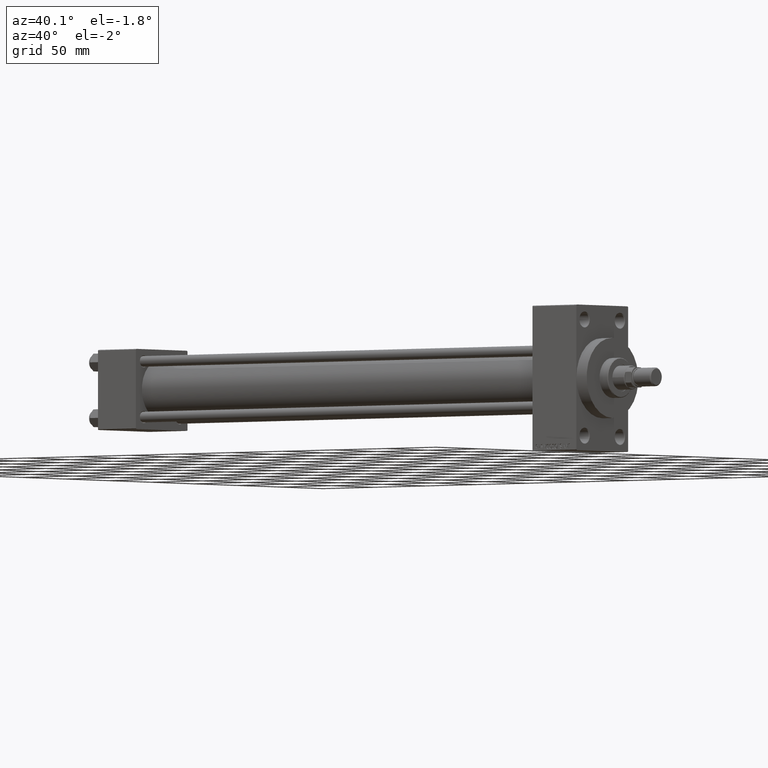
[diagram: clean part render]
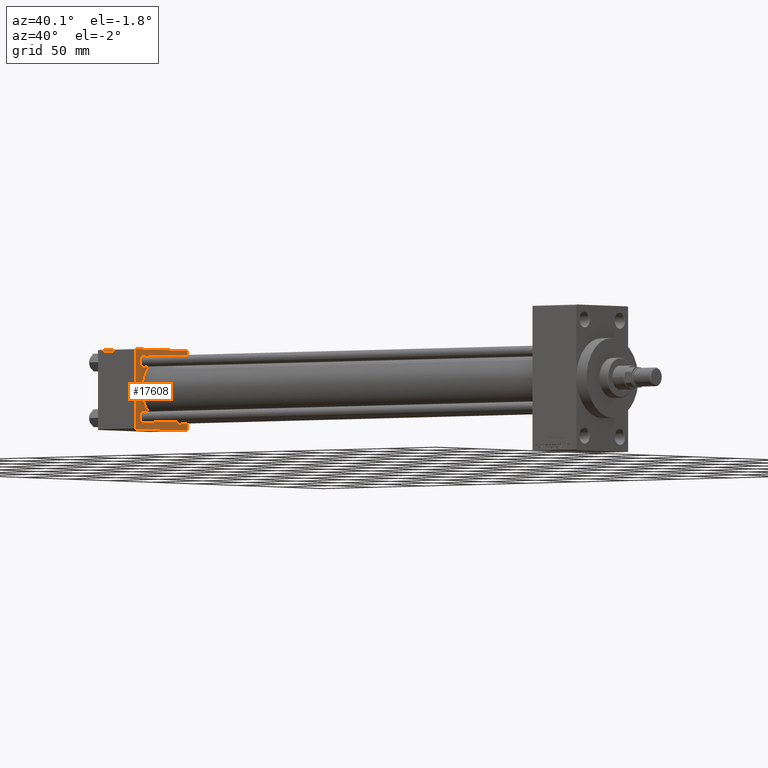
[diagram: same view with one face highlighted and labeled with its STEP entity id]
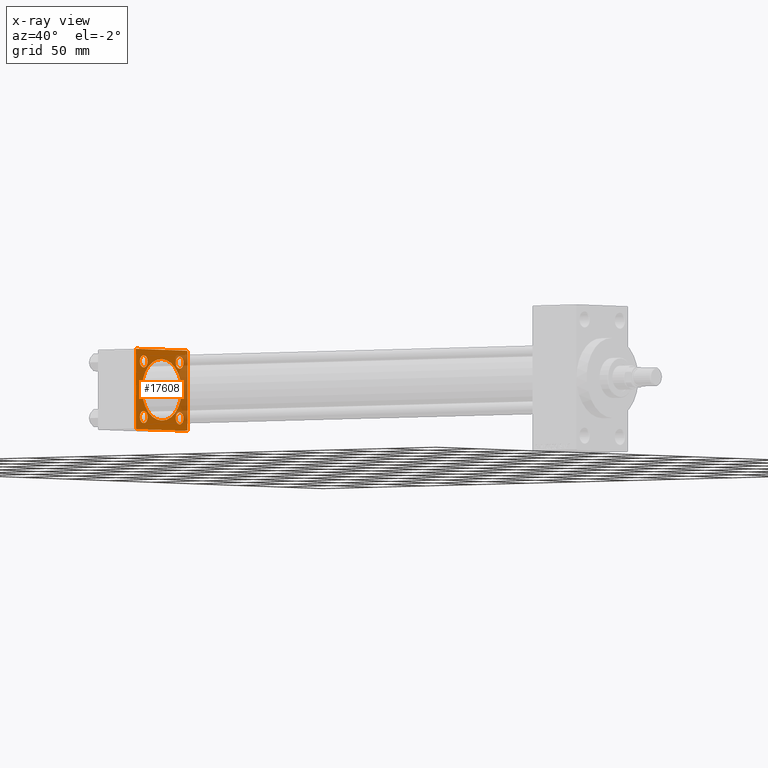
[diagram: x-ray of the same camera — body ghosted, the highlighted face saturated]
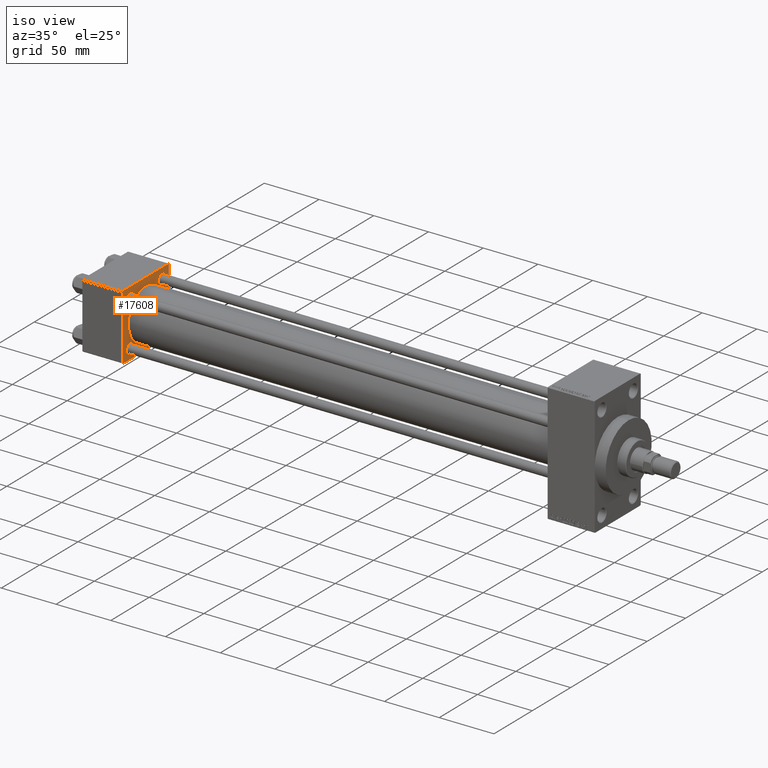
[diagram: same view with one face highlighted and labeled with its STEP entity id]
A machine part, auxiliary view. The second image highlights one B-rep face of the part: STEP entity #17608.
The next image is the same camera in x-ray: the body ghosted, the highlighted face saturated — about 23% of this face is hidden behind the body in this view.
A second angle (iso view) of the same face is appended — the face is thin or edge-on in the first view.
In plain terms, the highlighted planar face has unit normal (-1, 0, 0).
Its self-contained STEP definition (entity closure, byte-faithful):
#945 = CARTESIAN_POINT ( 'NONE',  ( 37.00000000000000000, -30.00000000000000000, 29.49999999999999289 ) ) ;
#1373 = DIRECTION ( 'NONE',  ( 0.000000000000000000, -0.7071067811865474617, 0.7071067811865474617 ) ) ;
#1448 = CARTESIAN_POINT ( 'NONE',  ( 37.00000000000000000, -30.00000000000000000, 29.99999999999999289 ) ) ;
#1818 = ORIENTED_EDGE ( 'NONE', *, *, #25349, .T. ) ;
#2108 = CARTESIAN_POINT ( 'NONE',  ( 37.00000000000000000, 29.49999999999999289, 30.00000000000000000 ) ) ;
#2352 = DIRECTION ( 'NONE',  ( -1.000000000000000000, 0.000000000000000000, -0.000000000000000000 ) ) ;
#2415 = VERTEX_POINT ( 'NONE', #24880 ) ;
#2468 = DIRECTION ( 'NONE',  ( 0.000000000000000000, 0.000000000000000000, 1.000000000000000000 ) ) ;
#2519 = EDGE_CURVE ( 'NONE', #20701, #42573, #45142, .T. ) ;
#2646 = DIRECTION ( 'NONE',  ( 0.000000000000000000, 0.000000000000000000, 1.000000000000000000 ) ) ;
#2683 = EDGE_CURVE ( 'NONE', #37690, #46907, #5759, .T. ) ;
#3817 = EDGE_CURVE ( 'NONE', #28309, #5826, #4278, .T. ) ;
#4092 = LINE ( 'NONE', #945, #6767 ) ;
#4278 = CIRCLE ( 'NONE', #39700, 23.00000000000000000 ) ;
#4282 = EDGE_LOOP ( 'NONE', ( #24780, #44676, #40779, #47598, #11938, #19062, #46255, #9643 ) ) ;
#4845 = DIRECTION ( 'NONE',  ( -0.000000000000000000, 0.7071067811865574537, 0.7071067811865376918 ) ) ;
#5004 = VECTOR ( 'NONE', #4845, 999.9999999999998863 ) ;
#5317 = LINE ( 'NONE', #1448, #29743 ) ;
#5522 = EDGE_CURVE ( 'NONE', #16800, #13347, #17408, .T. ) ;
#5543 = CIRCLE ( 'NONE', #14753, 4.499999999999948486 ) ;
#5561 = EDGE_CURVE ( 'NONE', #11987, #8473, #16094, .T. ) ;
#5596 = FACE_BOUND ( 'NONE', #41267, .T. ) ;
#5622 = CARTESIAN_POINT ( 'NONE',  ( 36.99999999999997868, -2.602085213965210642E-15, 0.000000000000000000 ) ) ;
#5759 = CIRCLE ( 'NONE', #8108, 4.499999999999948486 ) ;
#5826 = VERTEX_POINT ( 'NONE', #29337 ) ;
#6155 = CARTESIAN_POINT ( 'NONE',  ( 37.00000000000000000, 20.84999999999999787, 16.35000000000005116 ) ) ;
#6308 = DIRECTION ( 'NONE',  ( -1.000000000000000000, 0.000000000000000000, -0.000000000000000000 ) ) ;
#6371 = VERTEX_POINT ( 'NONE', #17115 ) ;
#6490 = CARTESIAN_POINT ( 'NONE',  ( 37.00000000000000000, -29.50000000000000000, -30.00000000000000711 ) ) ;
#6752 = CARTESIAN_POINT ( 'NONE',  ( 37.00000000000000000, -20.84999999999999076, 20.85000000000000497 ) ) ;
#6767 = VECTOR ( 'NONE', #8436, 1000.000000000000114 ) ;
#7310 = DIRECTION ( 'NONE',  ( 0.000000000000000000, -1.000000000000000000, -1.156482317317871725E-16 ) ) ;
#7524 = CARTESIAN_POINT ( 'NONE',  ( 37.00000000000000000, 29.99999999999999289, -30.00000000000000000 ) ) ;
#7577 = VERTEX_POINT ( 'NONE', #40055 ) ;
#7977 = CARTESIAN_POINT ( 'NONE',  ( 37.00000000000000000, 20.84999999999999787, -20.85000000000000142 ) ) ;
#8108 = AXIS2_PLACEMENT_3D ( 'NONE', #6752, #11073, #2646 ) ;
#8436 = DIRECTION ( 'NONE',  ( -0.000000000000000000, -0.7071067811865474617, -0.7071067811865474617 ) ) ;
#8473 = VERTEX_POINT ( 'NONE', #6490 ) ;
#8559 = EDGE_LOOP ( 'NONE', ( #36879, #29476 ) ) ;
#9251 = ORIENTED_EDGE ( 'NONE', *, *, #40187, .T. ) ;
#9643 = ORIENTED_EDGE ( 'NONE', *, *, #5561, .T. ) ;
#9929 = CARTESIAN_POINT ( 'NONE',  ( 37.00000000000000000, 20.84999999999999787, -25.34999999999994813 ) ) ;
#10041 = AXIS2_PLACEMENT_3D ( 'NONE', #20937, #28201, #30862 ) ;
#10071 = VECTOR ( 'NONE', #44813, 1000.000000000000000 ) ;
#10264 = EDGE_CURVE ( 'NONE', #29431, #12718, #40103, .T. ) ;
#10686 = CARTESIAN_POINT ( 'NONE',  ( 37.00000000000000000, 29.99999999999999289, 30.00000000000000000 ) ) ;
#11035 = EDGE_LOOP ( 'NONE', ( #11271, #26745 ) ) ;
#11073 = DIRECTION ( 'NONE',  ( -1.000000000000000000, 0.000000000000000000, -0.000000000000000000 ) ) ;
#11271 = ORIENTED_EDGE ( 'NONE', *, *, #33829, .T. ) ;
#11928 = CIRCLE ( 'NONE', #28107, 4.499999999999948486 ) ;
#11938 = ORIENTED_EDGE ( 'NONE', *, *, #10264, .T. ) ;
#11976 = EDGE_CURVE ( 'NONE', #6371, #27371, #43959, .T. ) ;
#11987 = VERTEX_POINT ( 'NONE', #12518 ) ;
#12081 = CARTESIAN_POINT ( 'NONE',  ( 37.00000000000000000, 29.99999999999999289, -29.50000000000000000 ) ) ;
#12105 = EDGE_LOOP ( 'NONE', ( #9251, #33475 ) ) ;
#12151 = EDGE_CURVE ( 'NONE', #20258, #42573, #30572, .T. ) ;
#12518 = CARTESIAN_POINT ( 'NONE',  ( 37.00000000000000000, -30.00000000000000000, -29.50000000000001776 ) ) ;
#12718 = VERTEX_POINT ( 'NONE', #24778 ) ;
#13171 = AXIS2_PLACEMENT_3D ( 'NONE', #36440, #46830, #28266 ) ;
#13202 = DIRECTION ( 'NONE',  ( 0.000000000000000000, 0.000000000000000000, 1.000000000000000000 ) ) ;
#13347 = VERTEX_POINT ( 'NONE', #39714 ) ;
#13429 = DIRECTION ( 'NONE',  ( 0.000000000000000000, 0.000000000000000000, 1.000000000000000000 ) ) ;
#14498 = VERTEX_POINT ( 'NONE', #6155 ) ;
#14753 = AXIS2_PLACEMENT_3D ( 'NONE', #39719, #39954, #13429 ) ;
#14868 = AXIS2_PLACEMENT_3D ( 'NONE', #36211, #6308, #28741 ) ;
#14974 = LINE ( 'NONE', #7524, #29074 ) ;
#16094 = LINE ( 'NONE', #16573, #25891 ) ;
#16146 = DIRECTION ( 'NONE',  ( 0.000000000000000000, 0.000000000000000000, -1.000000000000000000 ) ) ;
#16573 = CARTESIAN_POINT ( 'NONE',  ( 37.00000000000000000, -29.50000000000001066, -30.00000000000000711 ) ) ;
#16800 = VERTEX_POINT ( 'NONE', #9929 ) ;
#16851 = CARTESIAN_POINT ( 'NONE',  ( 37.00000000000000000, -20.84999999999999076, 25.34999999999995168 ) ) ;
#17115 = CARTESIAN_POINT ( 'NONE',  ( 37.00000000000000000, -20.84999999999999076, -16.35000000000005471 ) ) ;
#17408 = CIRCLE ( 'NONE', #37475, 4.499999999999948486 ) ;
#17608 = ADVANCED_FACE ( 'NONE', ( #20542, #5596, #31407, #46116, #28024, #24151 ), #38887, .F. ) ;
#18231 = EDGE_CURVE ( 'NONE', #7577, #14498, #27254, .T. ) ;
#18543 = CIRCLE ( 'NONE', #13171, 4.499999999999948486 ) ;
#19062 = ORIENTED_EDGE ( 'NONE', *, *, #35626, .T. ) ;
#19135 = AXIS2_PLACEMENT_3D ( 'NONE', #34784, #42024, #38400 ) ;
#19724 = DIRECTION ( 'NONE',  ( 0.000000000000000000, 0.000000000000000000, 1.000000000000000000 ) ) ;
#20258 = VERTEX_POINT ( 'NONE', #31808 ) ;
#20542 = FACE_BOUND ( 'NONE', #12105, .T. ) ;
#20686 = VECTOR ( 'NONE', #1373, 1000.000000000000114 ) ;
#20701 = VERTEX_POINT ( 'NONE', #21592 ) ;
#20792 = EDGE_LOOP ( 'NONE', ( #36851, #44309 ) ) ;
#20937 = CARTESIAN_POINT ( 'NONE',  ( 37.00000000000000000, -20.84999999999999076, -20.85000000000000497 ) ) ;
#21592 = CARTESIAN_POINT ( 'NONE',  ( 37.00000000000000000, 29.49999999999997868, -30.00000000000000000 ) ) ;
#23323 = CARTESIAN_POINT ( 'NONE',  ( 37.00000000000000000, 29.49999999999999289, 30.00000000000000000 ) ) ;
#23587 = CARTESIAN_POINT ( 'NONE',  ( 37.00000000000000000, 20.84999999999999787, -20.85000000000000142 ) ) ;
#24098 = CARTESIAN_POINT ( 'NONE',  ( 37.00000000000000000, -20.84999999999999076, -25.34999999999995168 ) ) ;
#24139 = AXIS2_PLACEMENT_3D ( 'NONE', #35409, #2352, #24775 ) ;
#24151 = FACE_OUTER_BOUND ( 'NONE', #4282, .T. ) ;
#24534 = CARTESIAN_POINT ( 'NONE',  ( 36.99999999999997868, -2.602085213965210642E-15, 0.000000000000000000 ) ) ;
#24775 = DIRECTION ( 'NONE',  ( 0.000000000000000000, 0.000000000000000000, 1.000000000000000000 ) ) ;
#24778 = CARTESIAN_POINT ( 'NONE',  ( 37.00000000000000000, -29.49999999999998579, 29.99999999999999289 ) ) ;
#24780 = ORIENTED_EDGE ( 'NONE', *, *, #30988, .F. ) ;
#24880 = CARTESIAN_POINT ( 'NONE',  ( 37.00000000000000000, -30.00000000000000000, 29.49999999999999289 ) ) ;
#25349 = EDGE_CURVE ( 'NONE', #13347, #16800, #11928, .T. ) ;
#25450 = CARTESIAN_POINT ( 'NONE',  ( 37.00000000000000000, 29.99999999999999289, -29.50000000000000000 ) ) ;
#25891 = VECTOR ( 'NONE', #31305, 1000.000000000000114 ) ;
#26745 = ORIENTED_EDGE ( 'NONE', *, *, #18231, .T. ) ;
#27254 = CIRCLE ( 'NONE', #24139, 4.499999999999948486 ) ;
#27343 = EDGE_CURVE ( 'NONE', #2415, #11987, #5317, .T. ) ;
#27371 = VERTEX_POINT ( 'NONE', #24098 ) ;
#28024 = FACE_BOUND ( 'NONE', #8559, .T. ) ;
#28107 = AXIS2_PLACEMENT_3D ( 'NONE', #7977, #44872, #41717 ) ;
#28201 = DIRECTION ( 'NONE',  ( -1.000000000000000000, 0.000000000000000000, -0.000000000000000000 ) ) ;
#28266 = DIRECTION ( 'NONE',  ( 0.000000000000000000, 0.000000000000000000, 1.000000000000000000 ) ) ;
#28309 = VERTEX_POINT ( 'NONE', #30428 ) ;
#28741 = DIRECTION ( 'NONE',  ( -0.000000000000000000, 0.000000000000000000, 1.000000000000000000 ) ) ;
#29074 = VECTOR ( 'NONE', #41030, 1000.000000000000000 ) ;
#29337 = CARTESIAN_POINT ( 'NONE',  ( 36.99999999999997868, -2.602085213965210642E-15, 23.00000000000000000 ) ) ;
#29431 = VERTEX_POINT ( 'NONE', #2108 ) ;
#29476 = ORIENTED_EDGE ( 'NONE', *, *, #3817, .F. ) ;
#29743 = VECTOR ( 'NONE', #16146, 1000.000000000000000 ) ;
#30101 = CARTESIAN_POINT ( 'NONE',  ( 37.00000000000000000, 29.99999999999999289, 30.00000000000000000 ) ) ;
#30428 = CARTESIAN_POINT ( 'NONE',  ( 36.99999999999997868, 2.146024240737012665E-16, -23.00000000000000000 ) ) ;
#30572 = LINE ( 'NONE', #30101, #10071 ) ;
#30862 = DIRECTION ( 'NONE',  ( 0.000000000000000000, 0.000000000000000000, 1.000000000000000000 ) ) ;
#30988 = EDGE_CURVE ( 'NONE', #20701, #8473, #14974, .T. ) ;
#31305 = DIRECTION ( 'NONE',  ( 0.000000000000000000, 0.7071067811865474617, -0.7071067811865474617 ) ) ;
#31407 = FACE_BOUND ( 'NONE', #20792, .T. ) ;
#31808 = CARTESIAN_POINT ( 'NONE',  ( 37.00000000000000000, 29.99999999999999289, 29.50000000000000000 ) ) ;
#33475 = ORIENTED_EDGE ( 'NONE', *, *, #11976, .T. ) ;
#33829 = EDGE_CURVE ( 'NONE', #14498, #7577, #43021, .T. ) ;
#34226 = DIRECTION ( 'NONE',  ( -1.000000000000000000, 0.000000000000000000, -0.000000000000000000 ) ) ;
#34341 = EDGE_CURVE ( 'NONE', #20258, #29431, #36375, .T. ) ;
#34784 = CARTESIAN_POINT ( 'NONE',  ( 37.00000000000000000, 20.84999999999999787, 20.85000000000000142 ) ) ;
#34813 = DIRECTION ( 'NONE',  ( 1.000000000000000000, -0.000000000000000000, 0.000000000000000000 ) ) ;
#35409 = CARTESIAN_POINT ( 'NONE',  ( 37.00000000000000000, 20.84999999999999787, 20.85000000000000142 ) ) ;
#35626 = EDGE_CURVE ( 'NONE', #12718, #2415, #4092, .T. ) ;
#36211 = CARTESIAN_POINT ( 'NONE',  ( 37.00000000000000000, 0.000000000000000000, 0.000000000000000000 ) ) ;
#36375 = LINE ( 'NONE', #23323, #20686 ) ;
#36440 = CARTESIAN_POINT ( 'NONE',  ( 37.00000000000000000, -20.84999999999999076, 20.85000000000000497 ) ) ;
#36851 = ORIENTED_EDGE ( 'NONE', *, *, #2683, .T. ) ;
#36879 = ORIENTED_EDGE ( 'NONE', *, *, #44685, .F. ) ;
#37475 = AXIS2_PLACEMENT_3D ( 'NONE', #23587, #34226, #19724 ) ;
#37690 = VERTEX_POINT ( 'NONE', #40592 ) ;
#38079 = EDGE_CURVE ( 'NONE', #46907, #37690, #18543, .T. ) ;
#38400 = DIRECTION ( 'NONE',  ( 0.000000000000000000, 0.000000000000000000, 1.000000000000000000 ) ) ;
#38778 = DIRECTION ( 'NONE',  ( 1.000000000000000000, -0.000000000000000000, 0.000000000000000000 ) ) ;
#38799 = CIRCLE ( 'NONE', #42656, 23.00000000000000000 ) ;
#38887 = PLANE ( 'NONE',  #14868 ) ;
#39700 = AXIS2_PLACEMENT_3D ( 'NONE', #24534, #38778, #13202 ) ;
#39714 = CARTESIAN_POINT ( 'NONE',  ( 37.00000000000000000, 20.84999999999999787, -16.35000000000005116 ) ) ;
#39719 = CARTESIAN_POINT ( 'NONE',  ( 37.00000000000000000, -20.84999999999999076, -20.85000000000000497 ) ) ;
#39954 = DIRECTION ( 'NONE',  ( -1.000000000000000000, 0.000000000000000000, -0.000000000000000000 ) ) ;
#40055 = CARTESIAN_POINT ( 'NONE',  ( 37.00000000000000000, 20.84999999999999787, 25.34999999999994813 ) ) ;
#40103 = LINE ( 'NONE', #10686, #42369 ) ;
#40187 = EDGE_CURVE ( 'NONE', #27371, #6371, #5543, .T. ) ;
#40592 = CARTESIAN_POINT ( 'NONE',  ( 37.00000000000000000, -20.84999999999999076, 16.35000000000005471 ) ) ;
#40779 = ORIENTED_EDGE ( 'NONE', *, *, #12151, .F. ) ;
#41030 = DIRECTION ( 'NONE',  ( 0.000000000000000000, -1.000000000000000000, -1.156482317317871725E-16 ) ) ;
#41267 = EDGE_LOOP ( 'NONE', ( #42931, #1818 ) ) ;
#41717 = DIRECTION ( 'NONE',  ( 0.000000000000000000, 0.000000000000000000, 1.000000000000000000 ) ) ;
#42024 = DIRECTION ( 'NONE',  ( -1.000000000000000000, 0.000000000000000000, -0.000000000000000000 ) ) ;
#42369 = VECTOR ( 'NONE', #7310, 1000.000000000000000 ) ;
#42573 = VERTEX_POINT ( 'NONE', #25450 ) ;
#42656 = AXIS2_PLACEMENT_3D ( 'NONE', #5622, #34813, #2468 ) ;
#42931 = ORIENTED_EDGE ( 'NONE', *, *, #5522, .T. ) ;
#43021 = CIRCLE ( 'NONE', #19135, 4.499999999999948486 ) ;
#43959 = CIRCLE ( 'NONE', #10041, 4.499999999999948486 ) ;
#44309 = ORIENTED_EDGE ( 'NONE', *, *, #38079, .T. ) ;
#44676 = ORIENTED_EDGE ( 'NONE', *, *, #2519, .T. ) ;
#44685 = EDGE_CURVE ( 'NONE', #5826, #28309, #38799, .T. ) ;
#44813 = DIRECTION ( 'NONE',  ( 0.000000000000000000, 0.000000000000000000, -1.000000000000000000 ) ) ;
#44872 = DIRECTION ( 'NONE',  ( -1.000000000000000000, 0.000000000000000000, -0.000000000000000000 ) ) ;
#45142 = LINE ( 'NONE', #12081, #5004 ) ;
#46116 = FACE_BOUND ( 'NONE', #11035, .T. ) ;
#46255 = ORIENTED_EDGE ( 'NONE', *, *, #27343, .T. ) ;
#46830 = DIRECTION ( 'NONE',  ( -1.000000000000000000, 0.000000000000000000, -0.000000000000000000 ) ) ;
#46907 = VERTEX_POINT ( 'NONE', #16851 ) ;
#47598 = ORIENTED_EDGE ( 'NONE', *, *, #34341, .T. ) ;